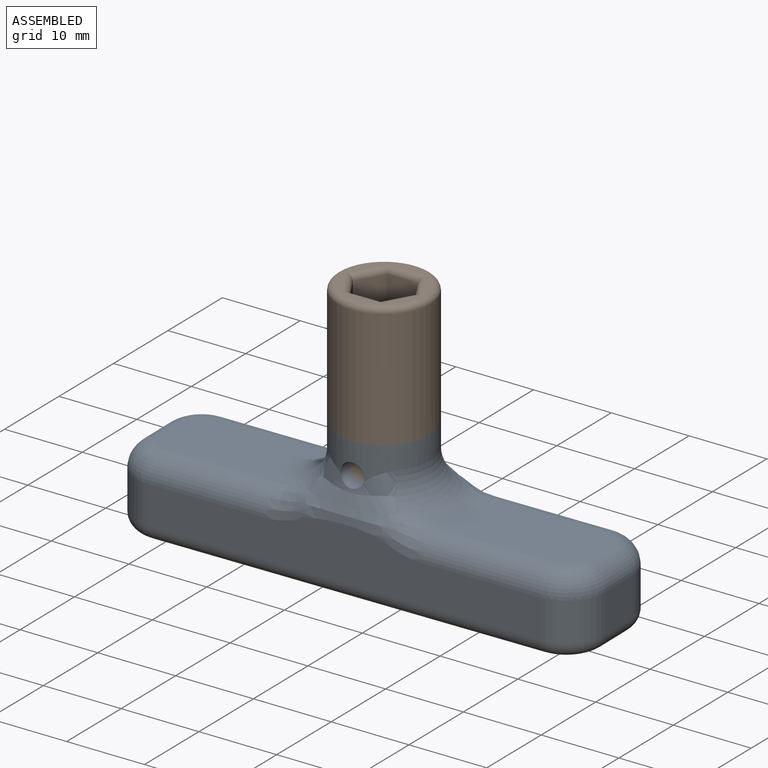
[diagram: assembled view]
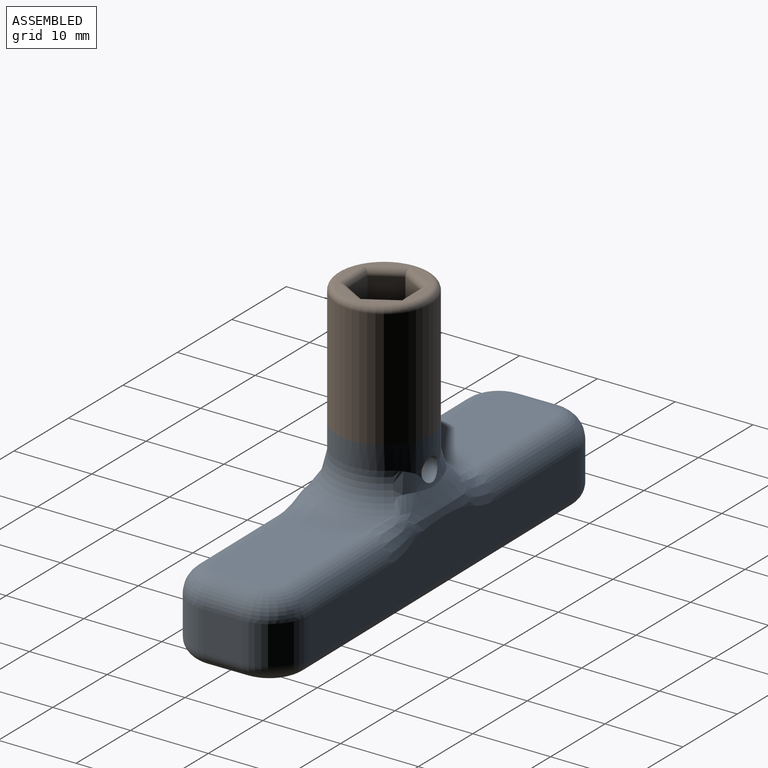
[diagram: assembled view, second angle]
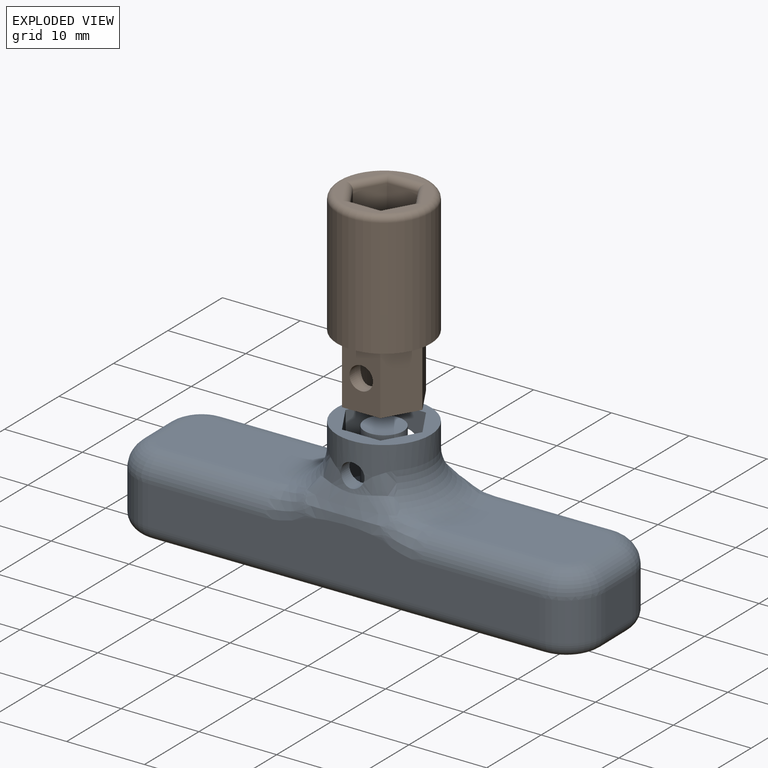
[diagram: exploded view]
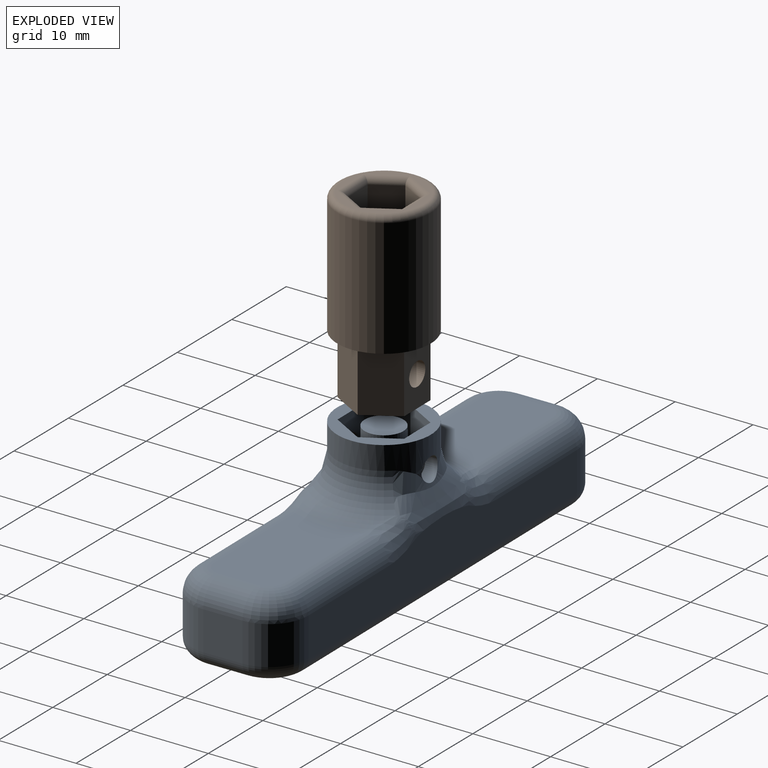
[diagram: exploded view, second angle]
ASSEMBLY  parts=2 mates=2
PART A: 57 faces, bbox 60.8x21.5x18 mm
  f0: plane 16.96x9mm, normal (0,0,1), area 145.1mm2, adj f26,f30,f32,f34,f36,f38
  f1: plane 16.96x9mm, normal (0,0,1), area 145.1mm2, adj f27,f39,f41,f43,f45,f47
  f2: plane 50x6.91mm, normal (0,1,0), area 271.3mm2, adj f3,f9,f29,f30,f31,f33,f35,f37
  f3: cylinder r=5mm len=5mm, axis (0,0,-1), area 39.3mm2, adj f2,f4,f32,f50
  f4: plane 5x5mm, normal (-1,0,0), area 25mm2, adj f3,f5,f34,f52
  f5: cylinder r=5mm len=5mm, axis (0,0,-1), area 39.3mm2, adj f4,f6,f36,f54
  f6: plane 50x6.91mm, normal (0,-1,0), area 271.3mm2, adj f5,f7,f38,f40,f42,f44,f46,f47
  f7: cylinder r=5mm len=5mm, axis (0,0,-1), area 39.3mm2, adj f6,f8,f45,f55
  f8: plane 5x5mm, normal (1,0,0), area 25mm2, adj f7,f9,f43,f53
  f9: cylinder r=5mm len=5mm, axis (0,0,-1), area 39.3mm2, adj f2,f8,f41,f51
  f10: plane 56x11mm, normal (0,0,-1), area 608.3mm2, adj f49,f50,f51,f52,f53,f54,f55,f56
  f11: plane 8x4.25mm, normal (-0.87,0.5,0), area 39.3mm2, adj f12,f17,f18,f21
  f12: plane 8x4.91mm, normal (0,1,0), area 32.2mm2, adj f11,f13,f18,f21,f23
  f13: plane 8x4.25mm, normal (0.87,0.5,0), area 39.3mm2, adj f12,f14,f18,f21
  f14: plane 8x4.25mm, normal (0.87,-0.5,0), area 39.3mm2, adj f13,f15,f18,f21
  f15: plane 8x4.91mm, normal (0,-1,0), area 32.2mm2, adj f14,f17,f18,f21,f24
  f16: cylinder r=6mm len=12mm, axis (0,0,-1), area 119.6mm2, adj f18,f23,f24,f25,f26,f27,f28
  f17: plane 8x4.25mm, normal (-0.87,-0.5,0), area 39.3mm2, adj f11,f15,f18,f21
  f18: plane 12x12mm, normal (0,0,1), area 50.5mm2, adj f11,f12,f13,f14,f15,f16,f17
  f19: plane 5x5mm, normal (0,0,1), area 19.6mm2, adj f20
  f20: cylinder r=2.5mm len=7.5mm, axis (0,0,-1), area 103mm2, adj f19,f21,f22
  f21: plane 9.82x8.5mm, normal (0,0,1), area 42.9mm2, adj f11,f12,f13,f14,f15,f17,f20
  f22: cylinder r=1.5mm len=5mm, axis (0,-1,0), area 47.1mm2, adj f20
  f23: cylinder r=1.5mm len=3mm, axis (0,-1,0), area 15.4mm2, adj f12,f16,f28
  f24: cylinder r=1.5mm len=3mm, axis (0,-1,0), area 15.9mm2, adj f15,f16,f25
  f25: bspline ~16.78x5.3mm, area 40.1mm2, adj f16,f24,f26,f27,f31,f33,f35
  f26: torus R=11mm, axis (0,0,1), area 82.5mm2, adj f0,f16,f25,f28,f29,f40
  f27: torus R=11mm, axis (0,0,1), area 82.5mm2, adj f1,f16,f25,f28,f37,f48
  f28: bspline ~16.78x5.3mm, area 41mm2, adj f16,f23,f26,f27,f42,f44,f46
  f29: bspline ~8.1x4.11mm, area 19.1mm2, adj f2,f26,f30,f31
  f30: cylinder r=3mm len=14.96mm, axis (1,0,0), area 70.5mm2, adj f0,f2,f29,f32
  f31: bspline ~2.56x1.88mm, area 1.1mm2, adj f2,f25,f29,f33
  f32: torus R=2mm, axis (0,0,1), area 28.9mm2, adj f0,f3,f30,f34
  f33: bspline ~11.21x2.47mm, area 23mm2, adj f2,f25,f31,f35
  f34: cylinder r=3mm len=5mm, axis (0,1,0), area 23.6mm2, adj f0,f4,f32,f36
  f35: bspline ~2.56x1.88mm, area 1.1mm2, adj f2,f25,f33,f37
  f36: torus R=2mm, axis (0,0,1), area 28.9mm2, adj f0,f5,f34,f38
  f37: bspline ~8.1x4.11mm, area 19.2mm2, adj f2,f27,f35,f39
  f38: cylinder r=3mm len=14.96mm, axis (-1,0,0), area 70.5mm2, adj f0,f6,f36,f40
  f39: cylinder r=3mm len=14.96mm, axis (1,0,0), area 70.5mm2, adj f1,f2,f37,f41
  f40: bspline ~8.1x4.11mm, area 19.2mm2, adj f6,f26,f38,f42
  f41: torus R=2mm, axis (0,0,1), area 28.9mm2, adj f1,f9,f39,f43
  f42: bspline ~2.56x1.88mm, area 1.1mm2, adj f6,f28,f40,f44
  f43: cylinder r=3mm len=5mm, axis (0,-1,0), area 23.6mm2, adj f1,f8,f41,f45
  f44: bspline ~11.21x2.47mm, area 23mm2, adj f6,f28,f42,f46
  f45: torus R=2mm, axis (0,0,1), area 28.9mm2, adj f1,f7,f43,f47
  f46: bspline ~2.56x1.88mm, area 1.1mm2, adj f6,f28,f44,f48
  f47: cylinder r=3mm len=14.96mm, axis (-1,0,0), area 70.5mm2, adj f1,f6,f45,f48
  f48: bspline ~8.1x4.11mm, area 19.1mm2, adj f6,f27,f46,f47
  f49: cylinder r=2mm len=50mm, axis (-1,0,0), area 157.1mm2, adj f2,f10,f50,f51
  f50: torus R=3mm, axis (0,0,1), area 21.1mm2, adj f3,f10,f49,f52
  f51: torus R=3mm, axis (0,0,1), area 21.1mm2, adj f9,f10,f49,f53
  f52: cylinder r=2mm len=5mm, axis (0,-1,0), area 15.7mm2, adj f4,f10,f50,f54
  f53: cylinder r=2mm len=5mm, axis (0,1,0), area 15.7mm2, adj f8,f10,f51,f55
  f54: torus R=3mm, axis (0,0,1), area 21.1mm2, adj f5,f10,f52,f56
  f55: torus R=3mm, axis (0,0,1), area 21.1mm2, adj f7,f10,f53,f56
  f56: cylinder r=2mm len=50mm, axis (1,0,0), area 157.1mm2, adj f6,f10,f54,f55
PART B: 31 faces, bbox 13x13x24 mm
  f0: plane 12x12mm, normal (0,0,-1), area 50.5mm2, adj f1,f10,f11,f12,f13,f14,f15
  f1: cylinder r=6mm len=15.2mm, axis (0,0,-1), area 573mm2, adj f0,f29
  f2: plane 10.4x10.4mm, normal (0,0,1), area 22.4mm2, adj f23,f24,f25,f26,f27,f28,f29
  f3: plane 10.2x3.98mm, normal (0,1,0), area 40.6mm2, adj f4,f8,f9,f28
  f4: plane 10.2x3.45mm, normal (-0.87,0.5,0), area 40.6mm2, adj f3,f5,f9,f27
  f5: plane 10.2x3.45mm, normal (-0.87,-0.5,0), area 40.6mm2, adj f4,f6,f9,f25
  f6: plane 10.2x3.98mm, normal (0,-1,0), area 40.6mm2, adj f5,f7,f9,f23
  f7: plane 10.2x3.45mm, normal (0.87,-0.5,0), area 40.6mm2, adj f6,f8,f9,f24
  f8: plane 10.2x3.45mm, normal (0.87,0.5,0), area 40.6mm2, adj f3,f7,f9,f26
  f9: plane 7.97x6.9mm, normal (0,0,1), area 34.2mm2, adj f3,f4,f5,f6,f7,f8,f30
  f10: plane 8x4.25mm, normal (0.87,0.5,0), area 39.3mm2, adj f0,f11,f15,f17
  f11: plane 8x4.25mm, normal (0.87,-0.5,0), area 39.3mm2, adj f0,f10,f12,f17
  f12: plane 8x4.91mm, normal (0,-1,0), area 32.2mm2, adj f0,f11,f13,f17,f21
  f13: plane 8x4.25mm, normal (-0.87,-0.5,0), area 39.3mm2, adj f0,f12,f14,f17
  f14: plane 8x4.25mm, normal (-0.87,0.5,0), area 39.3mm2, adj f0,f13,f15,f17
  f15: plane 8x4.91mm, normal (0,1,0), area 32.2mm2, adj f0,f10,f14,f17,f22
  f16: cylinder r=2.65mm len=8mm, axis (0,0,1), area 118.4mm2, adj f17,f20,f21,f22
  f17: plane 9.82x8.5mm, normal (0,0,-1), area 40.5mm2, adj f10,f11,f12,f13,f14,f15,f16
  f18: plane 5.2x5.2mm, normal (0,0,-1), area 14.2mm2, adj f19,f30
  f19: cylinder r=2.6mm len=5.2mm, axis (0,0,1), area 65.3mm2, adj f18,f20
  f20: plane 5.3x5.3mm, normal (0,0,-1), area 0.8mm2, adj f16,f19
  f21: cylinder r=1.5mm len=3mm, axis (0,-1,0), area 17.2mm2, adj f12,f16
  f22: cylinder r=1.5mm len=3mm, axis (0,-1,0), area 17.2mm2, adj f15,f16
  f23: cylinder r=0.8mm len=4.91mm, axis (1,0,0), area 5.4mm2, adj f2,f6,f24,f25
  f24: cylinder r=0.8mm len=4.65mm, axis (0.5,0.87,0), area 5.4mm2, adj f2,f7,f23,f26
  f25: cylinder r=0.8mm len=4.65mm, axis (0.5,-0.87,0), area 5.4mm2, adj f2,f5,f23,f27
  f26: cylinder r=0.8mm len=4.65mm, axis (-0.5,0.87,0), area 5.4mm2, adj f2,f8,f24,f28
  f27: cylinder r=0.8mm len=4.65mm, axis (-0.5,-0.87,0), area 5.4mm2, adj f2,f4,f25,f28
  f28: cylinder r=0.8mm len=4.91mm, axis (-1,0,0), area 5.4mm2, adj f2,f3,f26,f27
  f29: torus R=5.2mm, axis (0,0,1), area 45.1mm2, adj f1,f2
  f30: cylinder r=1.5mm len=3mm, axis (0,0,-1), area 9.4mm2, adj f9,f18
PLACE A rot(axis=(0,0,1),0.6deg) t=(5.02,11.1,-91.83)mm
PLACE B rot(axis=(0,0,1),0.6deg) t=(5.02,11.1,-69.83)mm
MATE planar B.f1 <-> A.f16  axis (0,0,-1) through (5.02,11.1,-73.83)mm
MATE slider B.f16 <-> A.f20  axis (0,0,1) through (5.02,11.1,-73.83)mm
